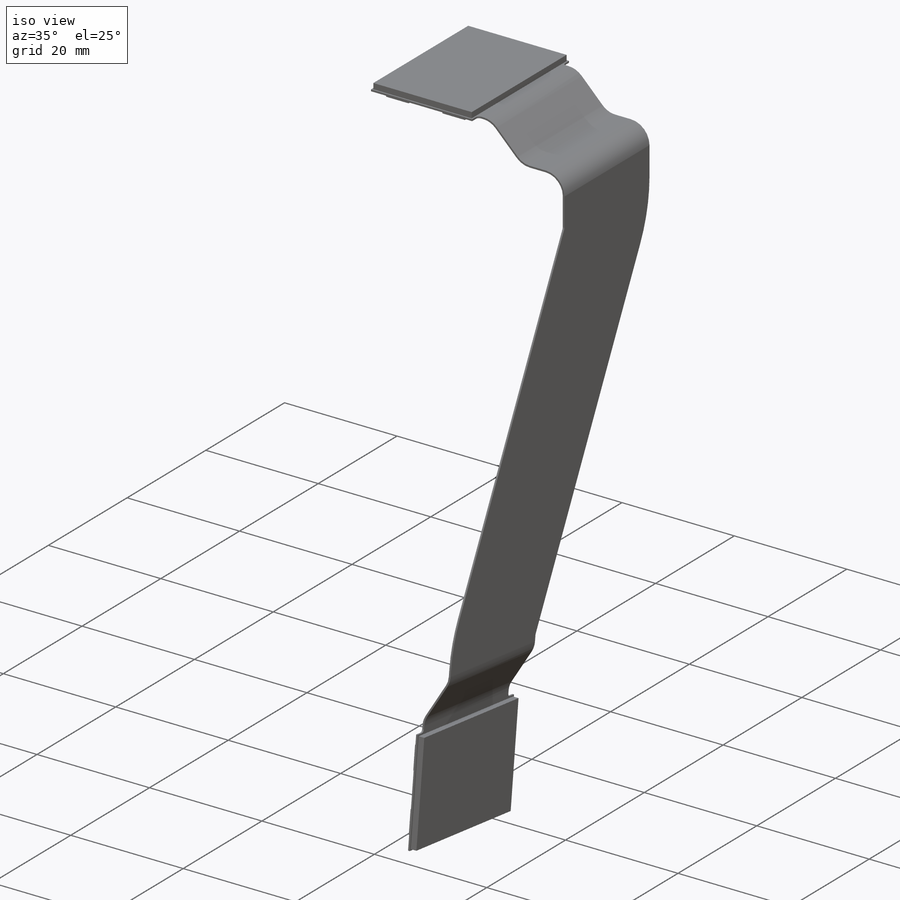
[diagram: iso view]
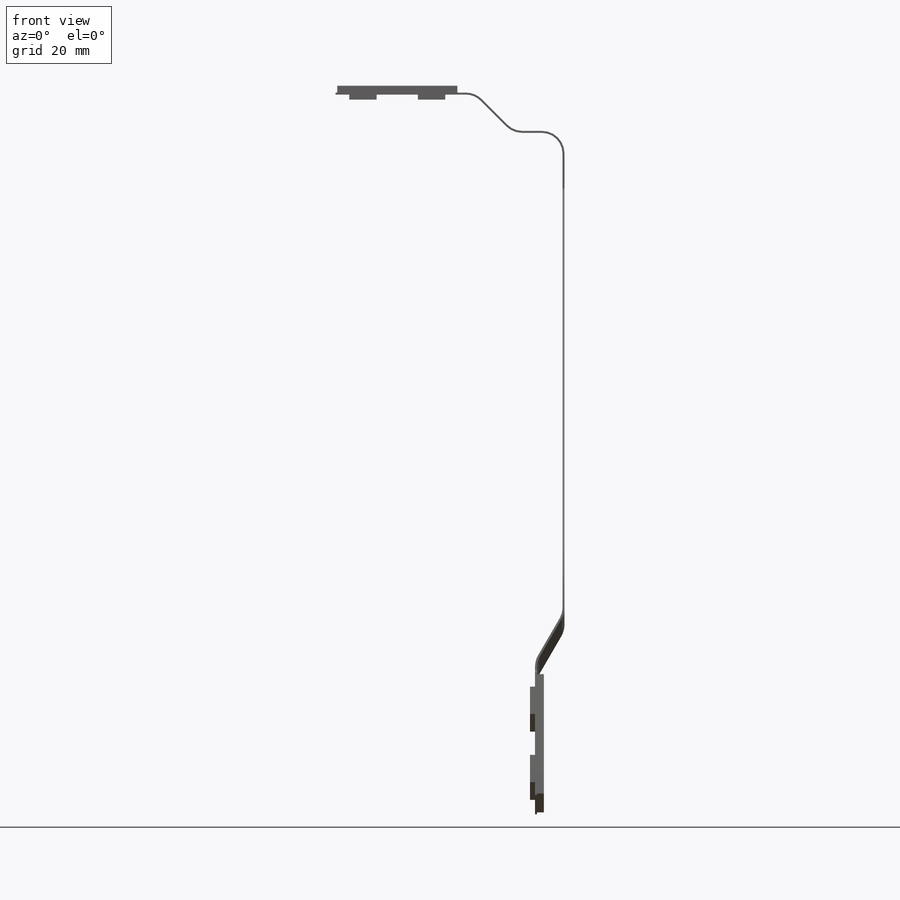
[diagram: front view]
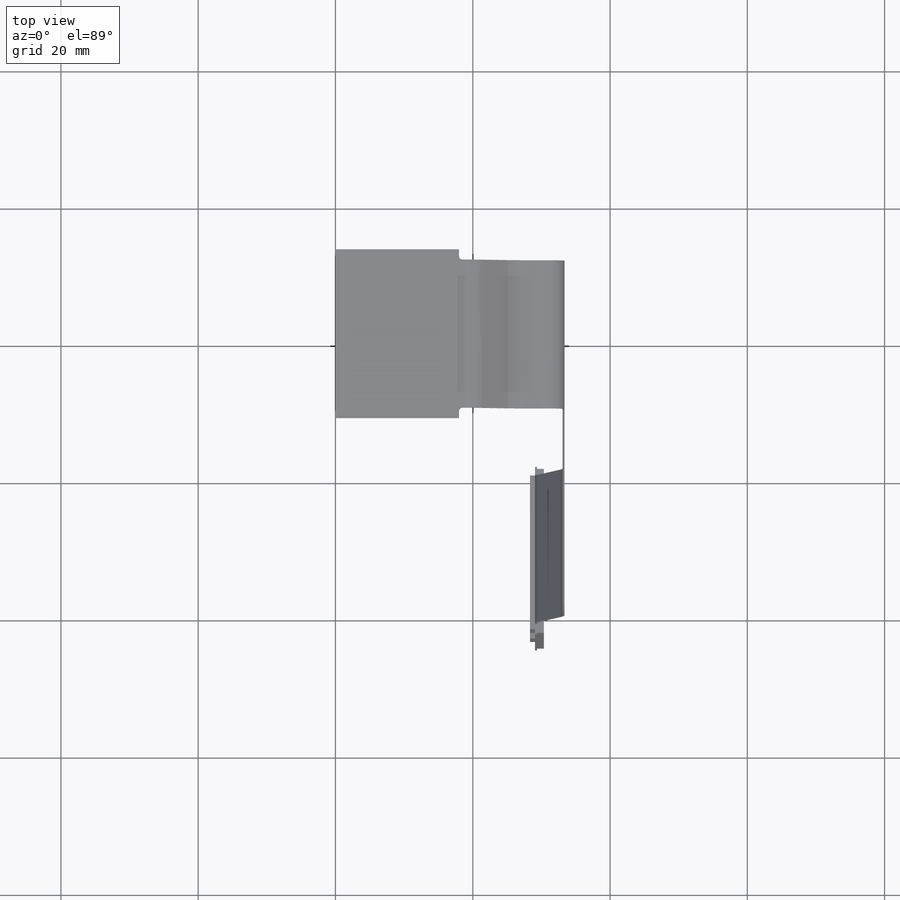
[diagram: top view]
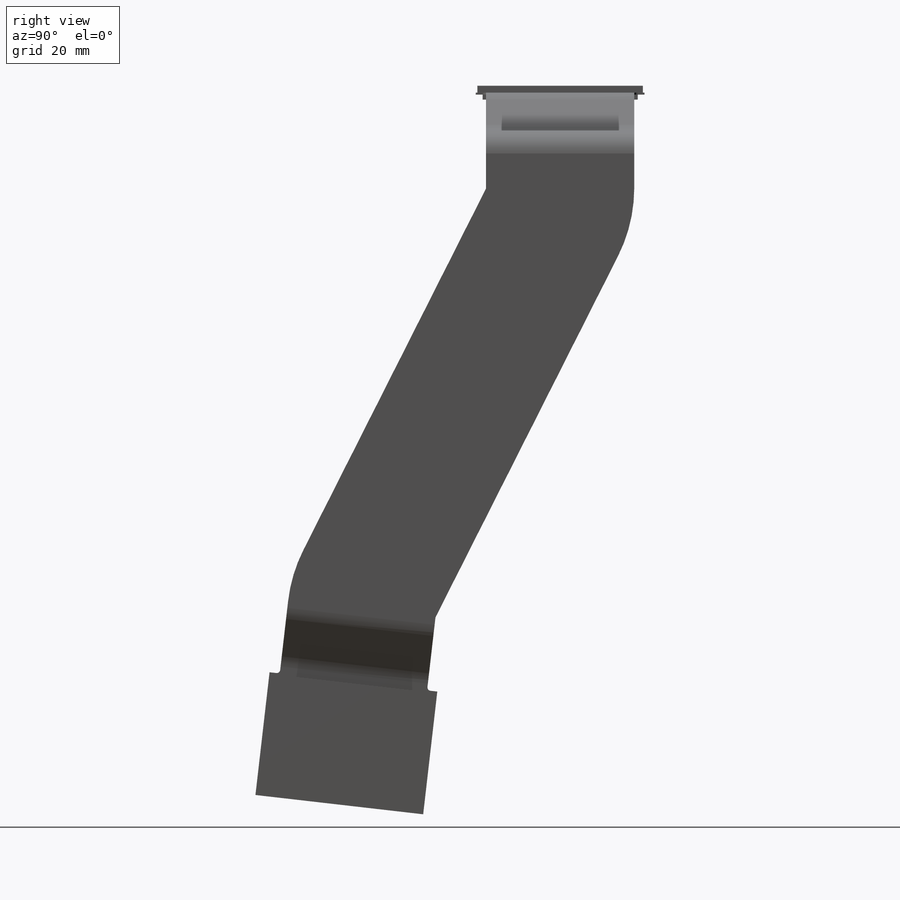
[diagram: right view]
SOLIDWORKS PART (.sldprt)
format: sldprt  version: not decoded by parser v0  size: 1,628,672 bytes
history: native  units: mm
features: sketch x13, extrude x6, plane x3, fillet x2, material x1, sweep x1, sheet_metal_op x1 + 7 further entries (+13 scaffold rows collapsed; 1 parser-record rows omitted)
feature tree (48):
  scaffold x13  (default folders/planes/origin — collapsed)
  material  "Material <not specified>"
  plane  "Plane1"
  plane  "Plane2"
  plane  "Plane3"
  "Axis2"
  "Axis3"
  sketch  "Sketch1"  dims[c1.D6=11.3mm c1.D1=25.0mm c1.D2=~145.391534mm c1.D3=~138.586801mm c2.D3=6.5625deg c2.D4=264.0mm c2.D5=~24.622073mm c3.D5=125.0deg c3.D1=~40.017113mm c4.D5=~22.587358mm c5.D5=35.0deg c5.D7=~6.107326mm c5.D2=~132.713385mm c5.D4=~17.116522mm c6.D5=~28.620439mm]
  sketch  "Sketch2"  dims[D1=21.6mm D2=0.294mm]
  sweep  "Sweep1"
  sketch  "Sketch9"  dims[D1=24.6mm D2=18.0mm]
  extrude  "Extrude3"  Depth=0.294mm
  fillet  "Fillet1"  Radius=0.5mm
  sketch  "Sketch7"  dims[c1.D1=0.25mm c1.D2=0.25mm c1.D3=0.25mm c1.D4=17.5mm c2.D2=0.25mm c2.D3=0.25mm]
  extrude  "Extrude1"  Depth=1mm
  sketch  "Sketch11"  dims[D1=22.6mm D2=4.0mm D3=6.0mm D4=2.0mm]
  extrude  "Extrude5"  Depth=0.725mm
  sketch  "Sketch13"  dims[D1=24.6mm D2=18.0mm]
  extrude  "Extrude7"  Depth=0.294mm
  fillet  "Fillet3"  Radius=0.5mm
  sketch  "Sketch14"  dims[D1=0.25mm D2=0.25mm D3=17.5mm]
  extrude  "Extrude8"  Depth=1mm
  sketch  "Sketch15"  dims[c1.D1=~18.108282mm c2.D1=2.0deg c2.D2=~18.136343mm c3.D1=2.0mm c3.D2=4.0mm c3.D3=6.0mm c3.D4=22.6mm]
  extrude  "Extrude9"  Depth=0.725mm
  sheet_metal_op  "Sheet-Metal1"  Thickness=0.294mm
  sketch  "Sharp-Sketch1"  dims[D1=3.0mm D2=500.0mm D3=0.0mm]
  sketch  "Flat-Sketch1"  dims[c1.D1=~32.545465mm c2.D1=3.0mm c2.D2=500.0mm c2.D3=0.0mm c2.D4=90.0deg c2.D5=1.0 c2.D8=0.0mm c2.D9=0.0mm c3.D1=3.0mm c3.D2=500.0mm c3.D3=0.0mm]
  sketch  "Sketch6"  dims[c1.D1=~27.620439mm c1.JogBend1=0.0 c2.D1=3.0mm c2.D4=30.0deg c2.D5=1.0 c2.JogBend2=0.0 c3.D1=3.0mm c3.D4=30.0deg c3.D5=2.0 c4.D1=3.0mm c4.D2=500.0mm c4.D3=0.0mm c5.D2=~4.003327mm c5.D3=30.0deg]
  sketch  "Sketch16"  dims[c1.D1=19.0mm c1.JogBend3=0.0 c2.D1=3.0mm c2.D4=45.0deg c2.D5=3.0 c2.JogBend4=0.0 c3.D1=3.0mm c3.D4=45.0deg c3.D5=4.0 c4.D1=3.0mm c4.D2=500.0mm c4.D3=0.0mm c5.D2=5.576mm c5.D3=45.0deg]
  "Flat-Pattern1"
  sketch  "Bend-Lines1"
  "Flatten-<JogBend2>1"
  "Flatten-<JogBend3>1"
  "Flatten-<JogBend4>1"
  "Flatten-<FlatBend1>1"
  parser-record x1  (decoder bookkeeping rows leaked as tree rows — omitted from the tree; the rows remain in map.json)
decode coverage: 21 of 23 modeling features carry decoded parameters; 7 rows unclassified (native names shown)
note: ~ marks probable driven/reference dimensions
note: suppression state not decoded; provenance and decode notes live in map.json
